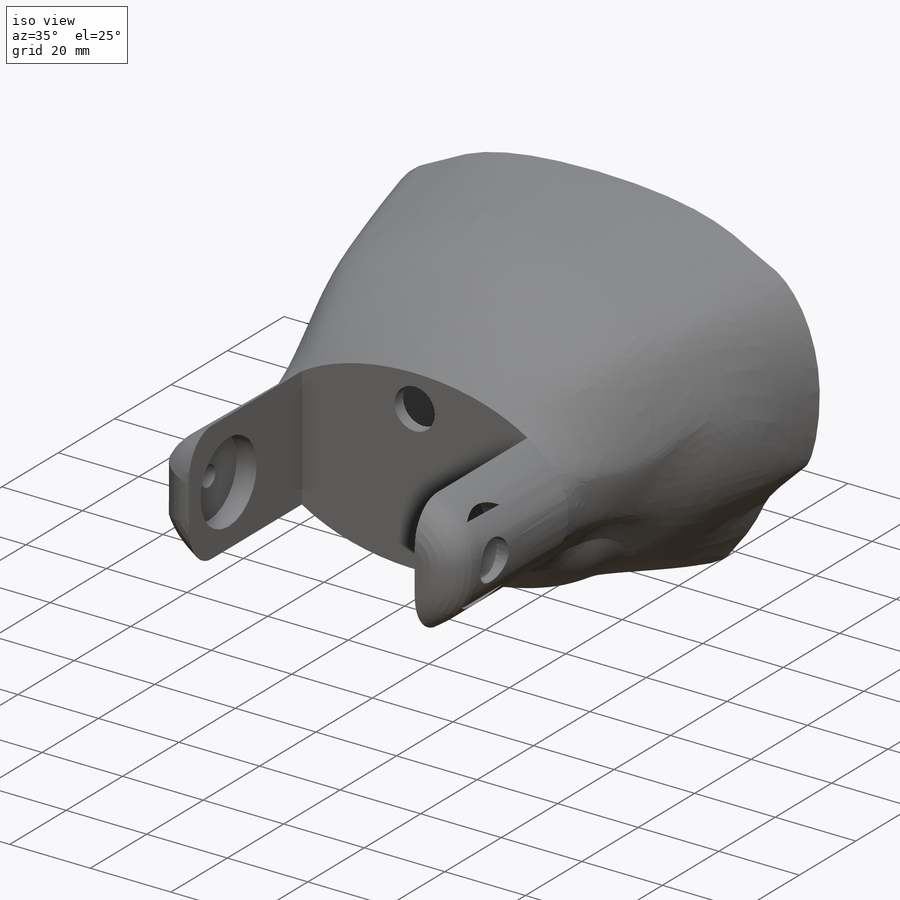
[diagram: iso view]
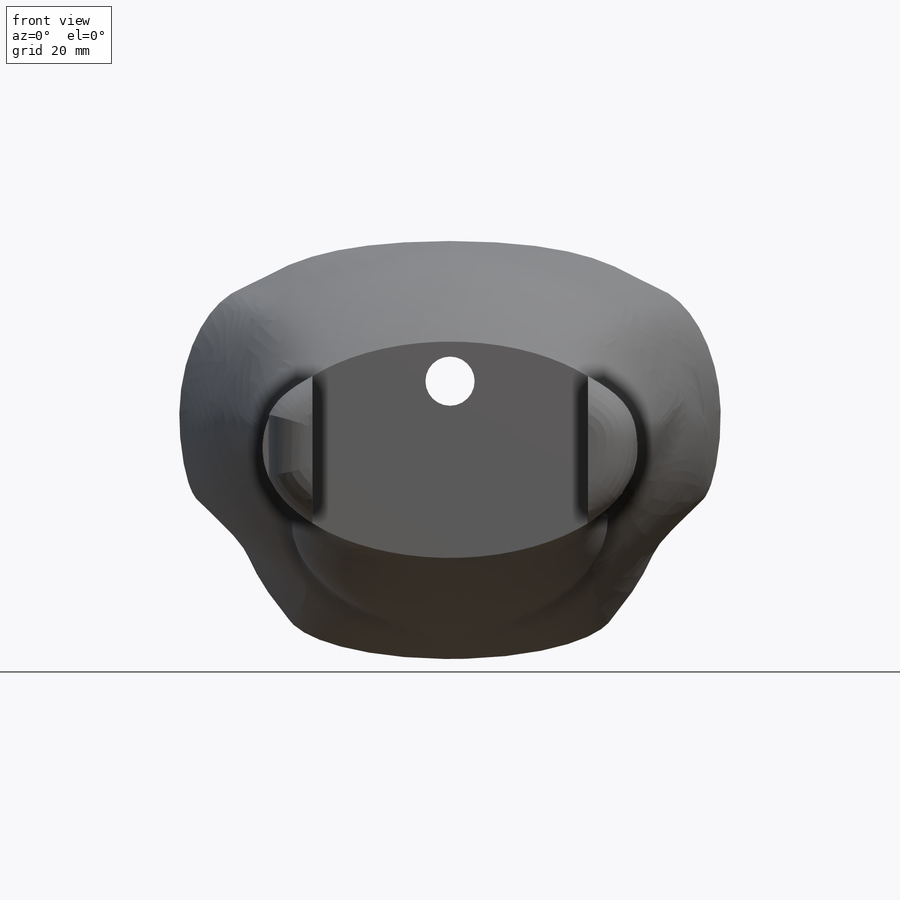
[diagram: front view]
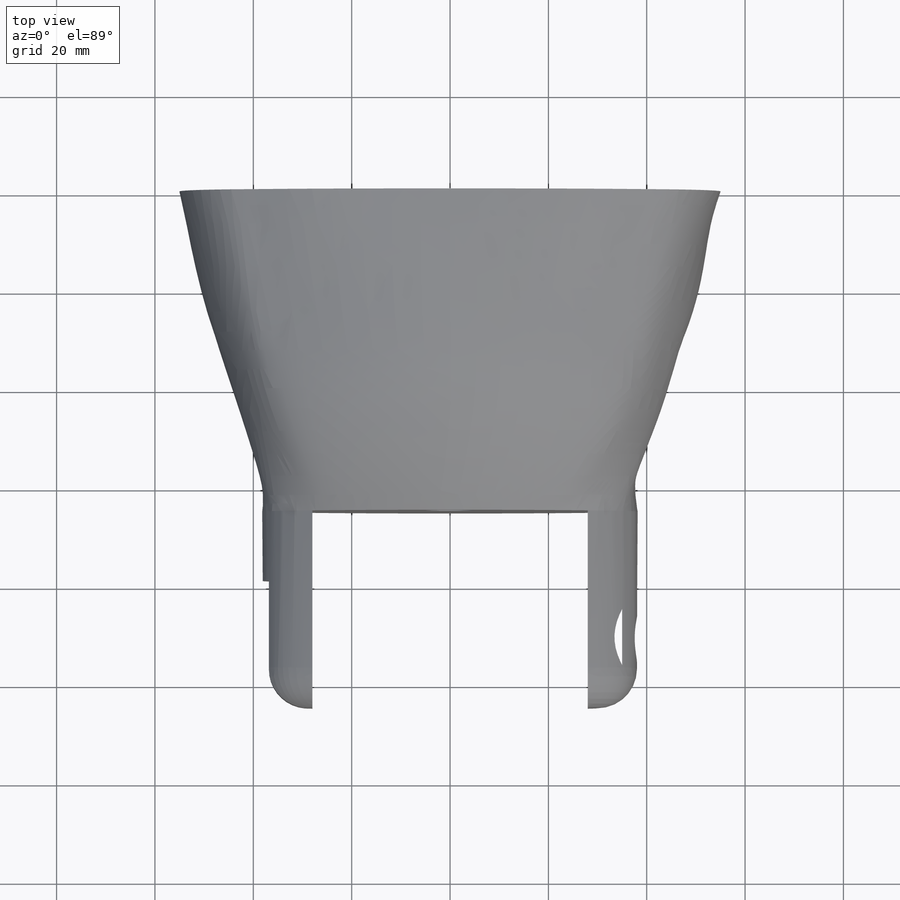
[diagram: top view]
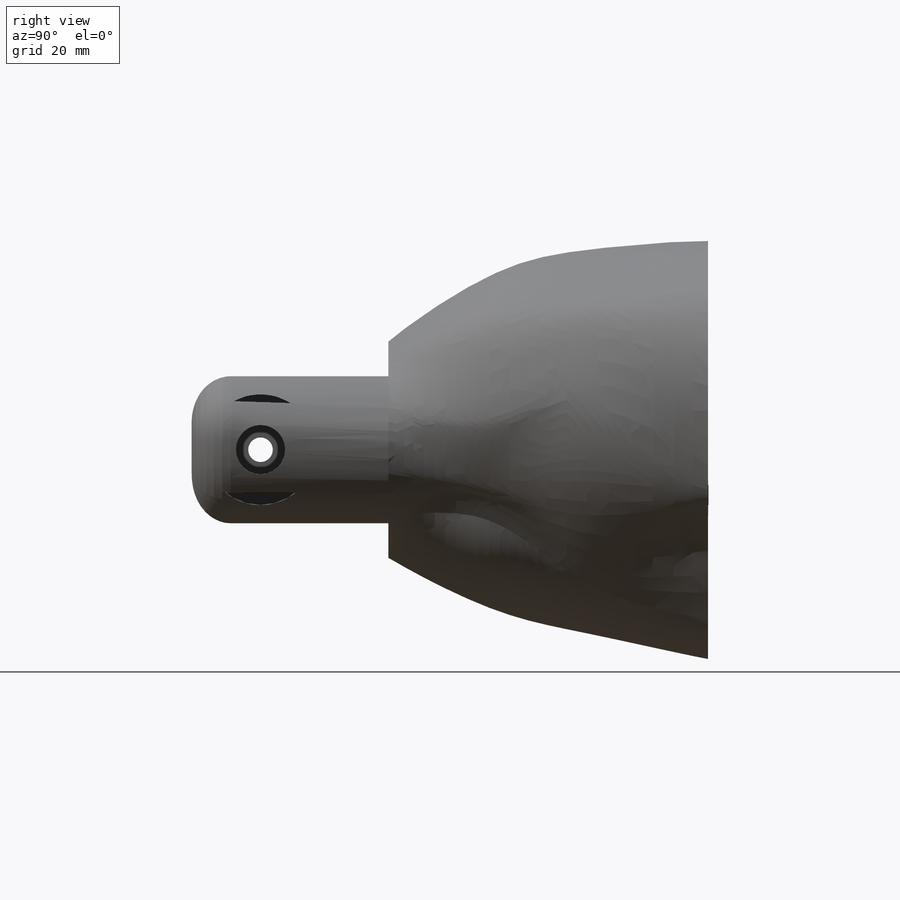
[diagram: right view]
SOLIDWORKS PART (.sldprt)
format: sldprt  version: not decoded by parser v0  size: 1,036,288 bytes
history: native  units: mm
features: sketch x19, cut_extrude x10, plane x5, extrude x3, fillet x3, shell x2, material x1, mirror x1 (+14 scaffold rows collapsed)
feature tree (58):
  scaffold x14  (default folders/planes/origin — collapsed)
  material  "ABS"
  sketch  "Sketch1"  dims[D1=10.0mm D2=110.0mm D3=85.0mm]
  plane  "Plane1"  Offset=25mm
  plane  "Plane2"  Offset=45mm
  plane  "Plane3"  Offset=65mm
  sketch  "Sketch4"
  sketch  "Sketch5"
  sketch  "Sketch6"
  sketch  "Sketch7"  dims[D2=28.0mm D1=0.0mm]
  plane  "Plane4"  Offset=40mm
  shell  "Shell6"  Thickness=3mm
  sketch  "Sketch8"  dims[D1=26.25mm]
  shell  "Loft2"  [1 undecoded]
  mirror  "Mirror2"
  sketch  "Sketch12"  dims[D1=20.0mm D2=14.0mm]
  cut_extrude  "Extrude4"  Depth=5mm
  sketch  "Sketch9"  dims[D1=7.0mm D2=15.0mm D3=8.0mm]
  sketch  "Sketch13"  dims[D1=5.0mm]
  cut_extrude  "Extrude5"  [1 undecoded]
  cut_extrude  "Extrude6"  Depth=25.874351mm
  sketch  "Sketch48"  dims[D1=45.0mm D2=45.0mm]
  extrude  "Extrude7"  Depth=10mm
  sketch  "Sketch49"  dims[D1=38.0mm D2=24.0mm]
  cut_extrude  "Extrude8"  Depth=10mm
  sketch  "Sketch51"  dims[D1=33.0mm]
  extrude  "Extrude9"  Depth=4.2mm
  sketch  "Sketch52"  dims[D1=15.0mm D2=2.0mm]
  cut_extrude  "Extrude10"  Depth=8mm
  fillet  "Fillet1"  Radius=20mm
  sketch  "Sketch53"
  extrude  "Extrude11"  Depth=6mm
  fillet  "Fillet2"  Radius=4mm
  sketch  "Sketch56"  dims[D1=10.0mm]
  cut_extrude  "Extrude13"  Depth=3mm
  sketch  "Sketch58"
  cut_extrude  "Extrude15"  Depth=14.5mm
  plane  "Plane5"  Offset=40mm
  sketch  "Sketch59"  dims[D1=10.0mm]
  cut_extrude  "Extrude16"  Depth=5mm
  sketch  "Sketch60"  dims[D1=22.5mm]
  cut_extrude  "Extrude17"  Depth=7mm
  fillet  "Fillet3"  Radius=8mm
  sketch  "Sketch61"
  cut_extrude  "Extrude18"  Depth=3mm
decode coverage: 29 of 38 modeling features carry decoded parameters
note: 2 parameter values undecoded
note: suppression state not decoded; provenance and decode notes live in map.json
